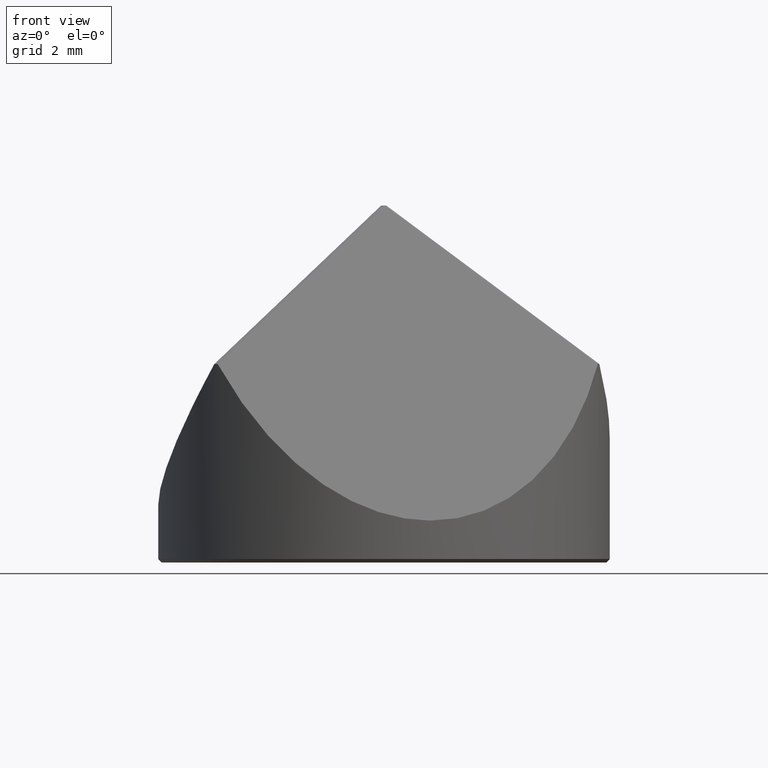
[diagram: clean part render]
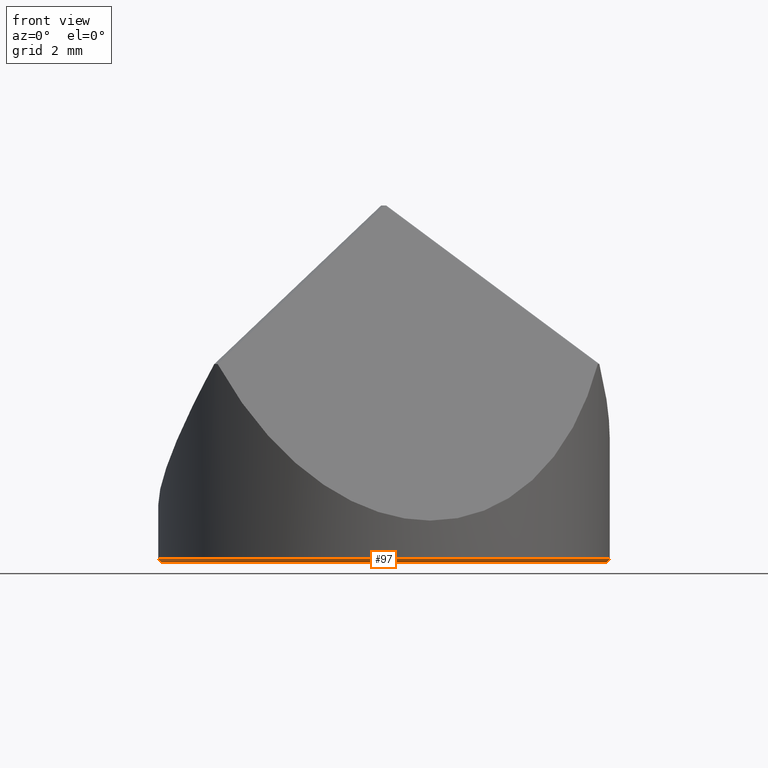
[diagram: same view with one face highlighted and labeled with its STEP entity id]
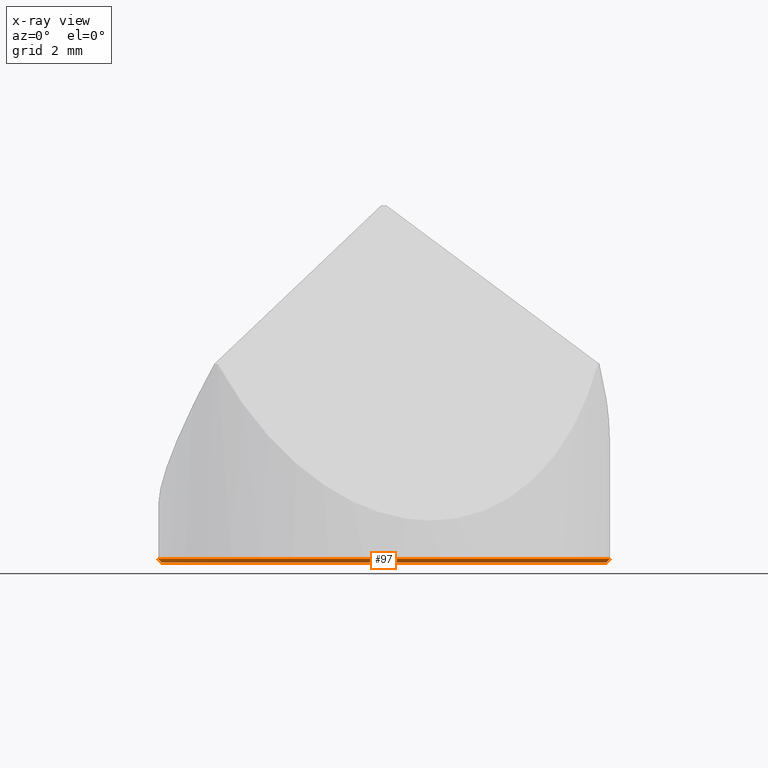
[diagram: x-ray of the same camera — body ghosted, the highlighted face saturated]
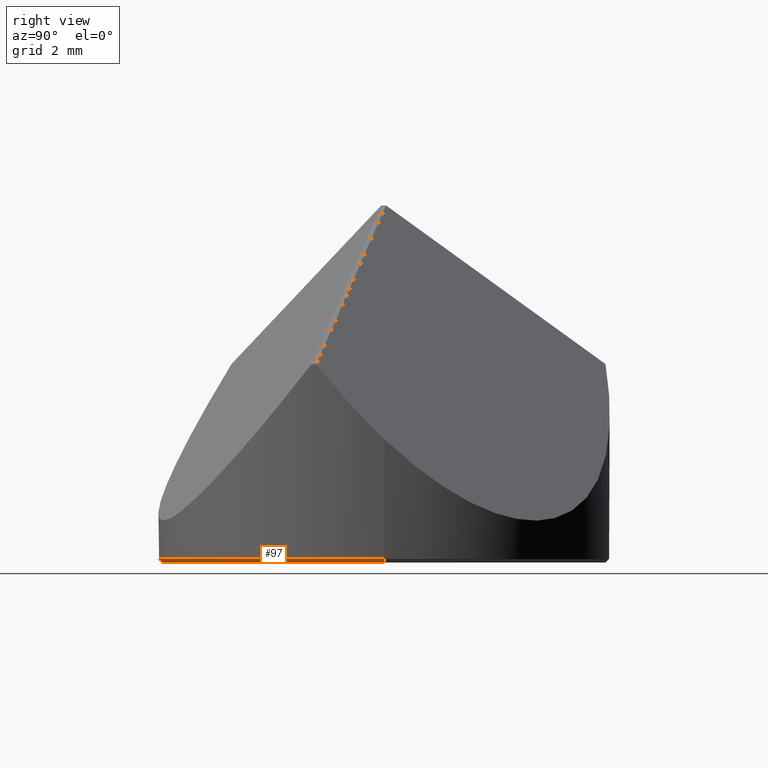
[diagram: same view with one face highlighted and labeled with its STEP entity id]
A machine part, front view. The second image highlights one B-rep face of the part: STEP entity #97.
The next image is the same camera in x-ray: the body ghosted, the highlighted face saturated — about 0% of this face is hidden behind the body in this view.
A second angle (right view) of the same face is appended — the face is thin or edge-on in the first view.
In plain terms, the highlighted conical surface has half-angle 45 deg.
Its self-contained STEP definition (entity closure, byte-faithful):
#3 = VERTEX_POINT ( 'NONE', #367 ) ;
#13 = EDGE_CURVE ( 'NONE', #280, #3, #58, .T. ) ;
#25 = DIRECTION ( 'NONE',  ( -1.000000000000000000, 0.000000000000000000, 0.000000000000000000 ) ) ;
#34 = LINE ( 'NONE', #152, #141 ) ;
#35 = VECTOR ( 'NONE', #170, 1000.000000000000000 ) ;
#52 = CARTESIAN_POINT ( 'NONE',  ( 0.000000000000000000, 0.000000000000000000, -0.5700000000000019496 ) ) ;
#58 = LINE ( 'NONE', #229, #35 ) ;
#65 = DIRECTION ( 'NONE',  ( -1.000000000000000000, 0.000000000000000000, 0.000000000000000000 ) ) ;
#67 = DIRECTION ( 'NONE',  ( 1.000000000000000000, 0.000000000000000000, 0.000000000000000000 ) ) ;
#97 = ADVANCED_FACE ( 'NONE', ( #208 ), #340, .T. ) ;
#98 = CARTESIAN_POINT ( 'NONE',  ( 0.000000000000000000, 0.000000000000000000, -0.6699999999999995959 ) ) ;
#110 = ORIENTED_EDGE ( 'NONE', *, *, #327, .F. ) ;
#114 = CIRCLE ( 'NONE', #181, 6.349999999999999645 ) ;
#123 = AXIS2_PLACEMENT_3D ( 'NONE', #154, #202, #65 ) ;
#138 = EDGE_CURVE ( 'NONE', #280, #143, #299, .T. ) ;
#141 = VECTOR ( 'NONE', #298, 1000.000000000000000 ) ;
#143 = VERTEX_POINT ( 'NONE', #234 ) ;
#152 = CARTESIAN_POINT ( 'NONE',  ( -6.250000000000000888, 7.654042494670958593E-16, -0.6699999999999995959 ) ) ;
#154 = CARTESIAN_POINT ( 'NONE',  ( 0.000000000000000000, 0.000000000000000000, -0.6699999999999999289 ) ) ;
#170 = DIRECTION ( 'NONE',  ( 0.7071067811865505703, 0.000000000000000000, 0.7071067811865444641 ) ) ;
#181 = AXIS2_PLACEMENT_3D ( 'NONE', #52, #310, #25 ) ;
#183 = EDGE_CURVE ( 'NONE', #143, #253, #34, .T. ) ;
#186 = ORIENTED_EDGE ( 'NONE', *, *, #13, .T. ) ;
#187 = CARTESIAN_POINT ( 'NONE',  ( 6.250000000000000888, 0.000000000000000000, -0.6699999999999999289 ) ) ;
#202 = DIRECTION ( 'NONE',  ( 0.000000000000000000, 0.000000000000000000, -1.000000000000000000 ) ) ;
#208 = FACE_OUTER_BOUND ( 'NONE', #338, .T. ) ;
#209 = AXIS2_PLACEMENT_3D ( 'NONE', #98, #261, #67 ) ;
#229 = CARTESIAN_POINT ( 'NONE',  ( 6.250000000000000888, 0.000000000000000000, -0.6699999999999995959 ) ) ;
#234 = CARTESIAN_POINT ( 'NONE',  ( -6.250000000000000888, 7.715274834628326364E-16, -0.6699999999999999289 ) ) ;
#253 = VERTEX_POINT ( 'NONE', #272 ) ;
#261 = DIRECTION ( 'NONE',  ( 0.000000000000000000, 0.000000000000000000, 1.000000000000000000 ) ) ;
#272 = CARTESIAN_POINT ( 'NONE',  ( -6.349999999999999645, 0.000000000000000000, -0.5700000000000019496 ) ) ;
#280 = VERTEX_POINT ( 'NONE', #187 ) ;
#285 = ORIENTED_EDGE ( 'NONE', *, *, #138, .F. ) ;
#298 = DIRECTION ( 'NONE',  ( -0.7071067811865505703, 8.659560562354971069E-17, 0.7071067811865444641 ) ) ;
#299 = CIRCLE ( 'NONE', #123, 6.250000000000000888 ) ;
#310 = DIRECTION ( 'NONE',  ( 0.000000000000000000, 0.000000000000000000, 1.000000000000000000 ) ) ;
#327 = EDGE_CURVE ( 'NONE', #253, #3, #114, .T. ) ;
#338 = EDGE_LOOP ( 'NONE', ( #343, #285, #186, #110 ) ) ;
#340 = CONICAL_SURFACE ( 'NONE', #209, 6.250000000000000888, 0.7853981633974526089 ) ;
#343 = ORIENTED_EDGE ( 'NONE', *, *, #183, .F. ) ;
#367 = CARTESIAN_POINT ( 'NONE',  ( 6.349999999999999645, 7.776507174585692163E-16, -0.5700000000000019496 ) ) ;